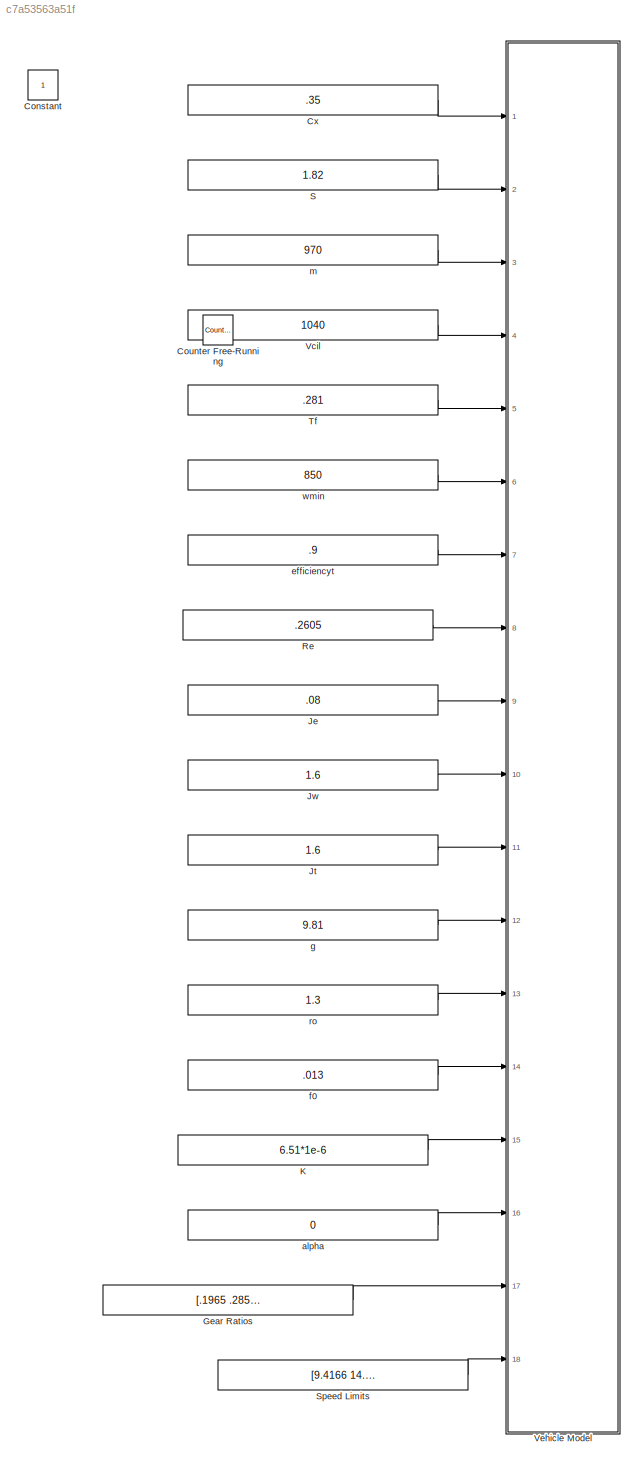
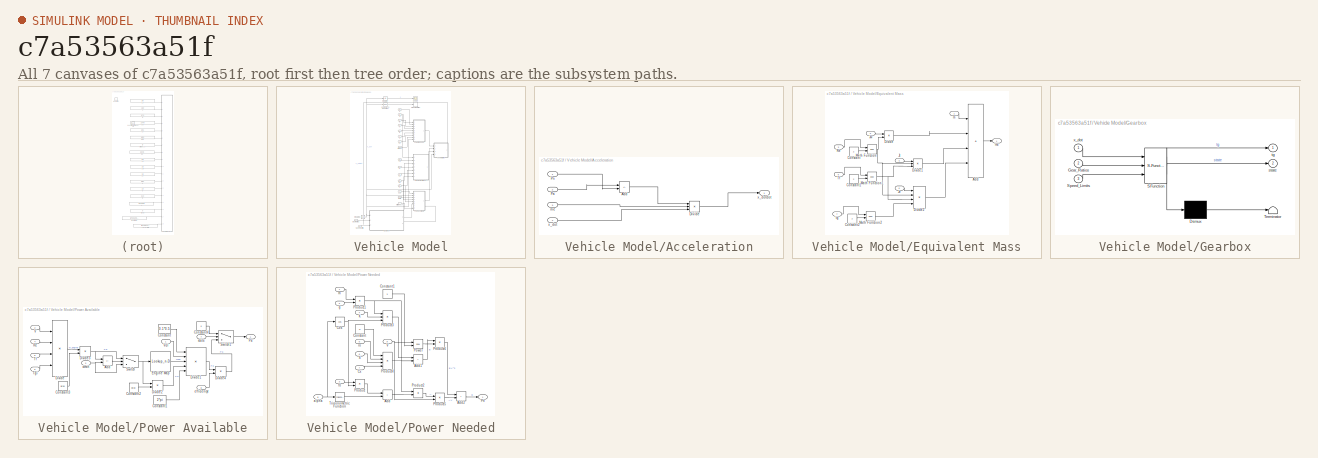
[diagram: thumbnail index - all 7 canvases of the model, root first then tree order]
MODEL slx_c7a53563a51f
KIND model
CONFIG AbsTol = auto
CONFIG EnableMultiTasking = off
CONFIG FixedStep = auto
CONFIG MaxStep = auto
CONFIG MinStep = auto
CONFIG RelTol = 1e-3
CONFIG SampleTimeConstraint = Unconstrained
CONFIG SolverName = VariableStepAuto
CONFIG StartTime = 0.0
CONFIG StopTime = 30
BLOCK [Constant] Constant
  IOType = siggen
BLOCK [Reference] Counter Free-Running  REF=simulink/Sources/Counter
Free-Running
  IOType = siggen
  Ports = [0, 1]
  SourceBlock = simulink/Sources/Counter\nFree-Running
  SourceProductBaseCode = SL
  SourceType = Counter Free-Running
BLOCK [Constant] Cx
  Value = .35
BLOCK [Constant] Gear Ratios
  Value = [.1965 .2857 .4155 .6044 .879]
BLOCK [Constant] Je
  Value = .08
BLOCK [Constant] Jt
  Value = 1.6
BLOCK [Constant] Jw
  Value = 1.6
BLOCK [Constant] K
  Value = 6.51*1e-6
BLOCK [Constant] Re
  Value = .2605
BLOCK [Constant] S
  Value = 1.82
BLOCK [Constant] Speed Limits
  Value = [9.4166 14.2383 20.7077 27.7778 40.4315]
BLOCK [Constant] Tf
  Value = .281
BLOCK [Constant] Vcil
  Value = 1040
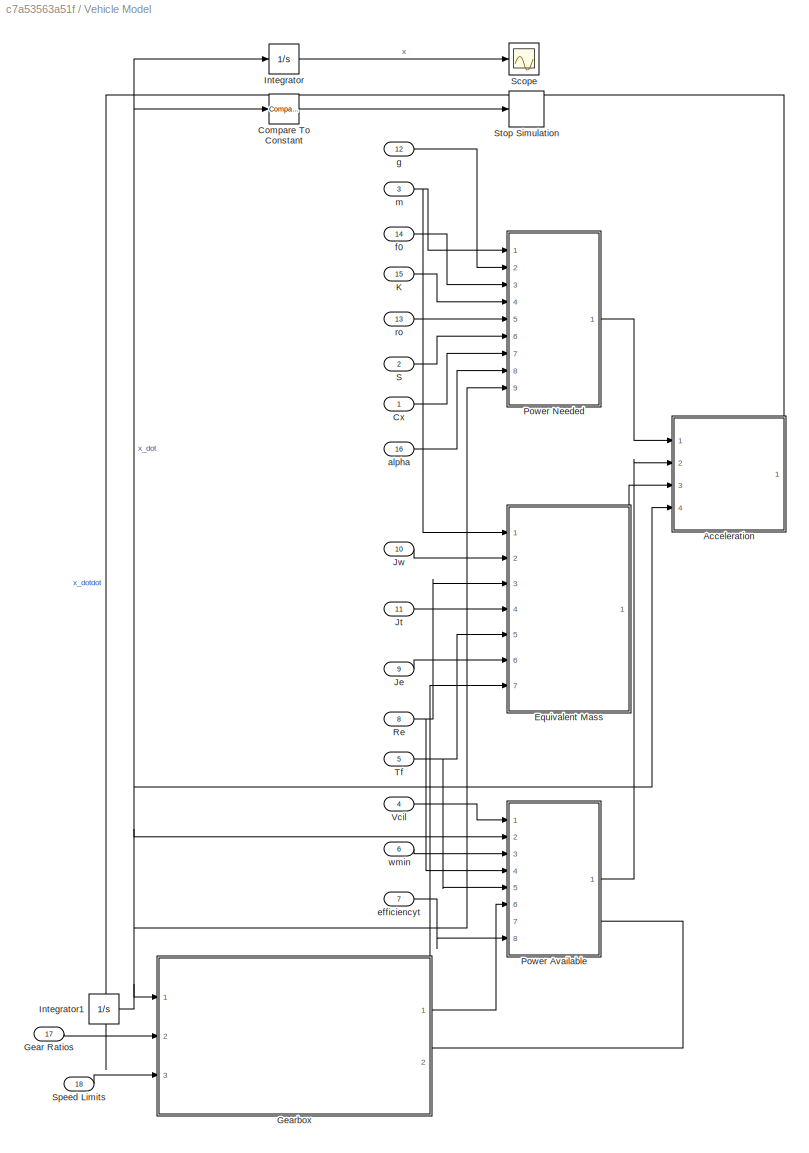
BLOCK [SubSystem] Vehicle Model
  Ports = [18]
  RequestExecContextInheritance = off
BLOCK [SubSystem] Vehicle Model/Acceleration
  PortSchema = {"entries":[{"content":{"sides":[{"content":{"connectorIds":["In1","In2","In3","In4"]},"type":"ConnectorPlacement.EquallySpacedRectSide","uuid":"0dac4d62-4e6e-48b9-89ab-502b66d42413"},{"content":{"connectorIds":[],"side":"RIGHT"},"type":"ConnectorPlacement.EquallySpacedRectSide","uuid":"bb08bafa-9960-47e7-83c1-b5fcb0a564c6"},{"content":{"connectorIds":["Out1"],"side":"TOP"},"type":"ConnectorPlacem...<+258ch>
  Ports = [4, 1]
  RequestExecContextInheritance = off
BLOCK [Sum] Vehicle Model/Acceleration/Add
  IconShape = rectangular
  Inputs = +-
  Ports = [2, 1]
BLOCK [Product] Vehicle Model/Acceleration/Divide
  Inputs = *//
  Ports = [3, 1]
BLOCK [Inport] Vehicle Model/Acceleration/Pa
  Port = 2
BLOCK [Inport] Vehicle Model/Acceleration/Pn
BLOCK [Inport] Vehicle Model/Acceleration/me
  Port = 3
BLOCK [Inport] Vehicle Model/Acceleration/x_dot
  Port = 4
BLOCK [Outport] Vehicle Model/Acceleration/x_dotdot
BLOCK [Reference] Vehicle Model/Compare To Constant  REF=simulink/Logic and Bit
Operations/Compare
To Constant
  Ports = [1, 1]
  SourceBlock = simulink/Logic and Bit\nOperations/Compare\nTo Constant
  SourceProductBaseCode = SL
  SourceType = Compare To Constant
BLOCK [Inport] Vehicle Model/Cx
BLOCK [SubSystem] Vehicle Model/Equivalent Mass
  PortSchema = {"entries":[{"content":{"sides":[{"content":{"connectorIds":["In1","In2","In3","In4","In5","In6","In7"]},"type":"ConnectorPlacement.EquallySpacedRectSide","uuid":"afdafb77-b6a4-4e1f-90ff-c5f4f1bf2fe0"},{"content":{"connectorIds":[],"side":"RIGHT"},"type":"ConnectorPlacement.EquallySpacedRectSide","uuid":"5fc42340-ce7c-45bd-a822-e10069a1a8a1"},{"content":{"connectorIds":["Out1"],"side":"TOP"},"type...<+276ch>
  Ports = [7, 1]
  RequestExecContextInheritance = off
BLOCK [Sum] Vehicle Model/Equivalent Mass/Add
  IconShape = rectangular
  Inputs = ++++
  Ports = [4, 1]
BLOCK [Constant] Vehicle Model/Equivalent Mass/Constant
  Value = 2
BLOCK [Constant] Vehicle Model/Equivalent Mass/Constant1
  Value = 2
BLOCK [Constant] Vehicle Model/Equivalent Mass/Constant2
  Value = 2
BLOCK [Product] Vehicle Model/Equivalent Mass/Divide
  Inputs = */
  Ports = [2, 1]
BLOCK [Product] Vehicle Model/Equivalent Mass/Divide1
  Inputs = *//
  Ports = [3, 1]
BLOCK [Product] Vehicle Model/Equivalent Mass/Divide2
  Inputs = *///
  Ports = [4, 1]
BLOCK [Inport] Vehicle Model/Equivalent Mass/Je
  Port = 6
BLOCK [Inport] Vehicle Model/Equivalent Mass/Jt
  Port = 4
BLOCK [Inport] Vehicle Model/Equivalent Mass/Jw
  Port = 2
BLOCK [Math] Vehicle Model/Equivalent Mass/Math Function
  Operator = pow
  Ports = [2, 1]
BLOCK [Math] Vehicle Model/Equivalent Mass/Math Function1
  Operator = pow
  Ports = [2, 1]
BLOCK [Math] Vehicle Model/Equivalent Mass/Math Function2
  Operator = pow
  Ports = [2, 1]
BLOCK [Inport] Vehicle Model/Equivalent Mass/Re
  Port = 3
BLOCK [Inport] Vehicle Model/Equivalent Mass/Tf
  Port = 5
BLOCK [Inport] Vehicle Model/Equivalent Mass/m
BLOCK [Outport] Vehicle Model/Equivalent Mass/me
BLOCK [Inport] Vehicle Model/Equivalent Mass/tg
  Port = 7
BLOCK [Inport] Vehicle Model/Gear Ratios
  Port = 17
BLOCK [SubSystem] Vehicle Model/Gearbox
  ErrorFcn = Stateflow.Translate.translate
  PermitHierarchicalResolution = ExplicitOnly
  PortSchema = {"entries":[{"content":{"sides":[{"content":{"connectorIds":["In1","In2","In3"]},"type":"ConnectorPlacement.EquallySpacedRectSide","uuid":"7b42100c-494e-4f6b-af0e-d741c5c5ef81"},{"content":{"connectorIds":[],"side":"RIGHT"},"type":"ConnectorPlacement.EquallySpacedRectSide","uuid":"210b2516-13c7-4261-98c6-692dfef7a0f0"},{"content":{"connectorIds":["Out2","Out1"],"side":"TOP"},"type":"ConnectorPlace...<+259ch>
  Ports = [3, 2]
  RequestExecContextInheritance = off
  SFBlockType = Chart
  TreatAsAtomicUnit = on
BLOCK [Demux] Vehicle Model/Gearbox/ Demux 
  Outputs = 1
  Ports = [1, 1]
BLOCK [S-Function] Vehicle Model/Gearbox/ SFunction 
  EnableBusSupport = on
  FunctionName = sf_sfun
  PortCounts = [3 3]
  Ports = [3, 3]
  SFcnIsStateOwnerBlock = off
  SFunctionDeploymentMode = off
  Tag = Stateflow S-Function 3
BLOCK [Terminator] Vehicle Model/Gearbox/ Terminator 
BLOCK [Inport] Vehicle Model/Gearbox/Gear_Ratios
  Port = 2
BLOCK [Inport] Vehicle Model/Gearbox/Speed_Limits
  Port = 3
BLOCK [Outport] Vehicle Model/Gearbox/state
  Port = 2
BLOCK [Outport] Vehicle Model/Gearbox/tg
BLOCK [Inport] Vehicle Model/Gearbox/x_dot
BLOCK [Integrator] Vehicle Model/Integrator
  Ports = [1, 1]
BLOCK [Integrator] Vehicle Model/Integrator1
  InitialCondition = 0.1
  Ports = [1, 1]
BLOCK [Inport] Vehicle Model/Je
  Port = 9
BLOCK [Inport] Vehicle Model/Jt
  Port = 11
BLOCK [Inport] Vehicle Model/Jw
  Port = 10
BLOCK [Inport] Vehicle Model/K
  Port = 15
BLOCK [SubSystem] Vehicle Model/Power Available
  Ports = [8, 1]
  RequestExecContextInheritance = off
BLOCK [Sum] Vehicle Model/Power Available/Add
  IconShape = rectangular
  Inputs = +-
  Ports = [2, 1]
BLOCK [Constant] Vehicle Model/Power Available/Constant
  Value = 0.1*0.5
BLOCK [Constant] Vehicle Model/Power Available/Constant1
  Value = 2*pi
BLOCK [Constant] Vehicle Model/Power Available/Constant2
  Value = pi/30
BLOCK [Constant] Vehicle Model/Power Available/Constant3
  Value = pi/30
BLOCK [Constant] Vehicle Model/Power Available/Constant4
  Value = 0
BLOCK [Product] Vehicle Model/Power Available/Divide
  Inputs = *///
  Ports = [4, 1]
BLOCK [Product] Vehicle Model/Power Available/Divide1
  Inputs = ****/
  Ports = [5, 1]
BLOCK [Product] Vehicle Model/Power Available/Divide2
  Inputs = **
  Ports = [2, 1]
BLOCK [Product] Vehicle Model/Power Available/Divide3
  Inputs = */
  Ports = [2, 1]
BLOCK [Product] Vehicle Model/Power Available/Divide4
  Inputs = **
  Ports = [2, 1]
BLOCK [Lookup_n-D] Vehicle Model/Power Available/Engine Map
  BreakpointsForDimension1 = [1000;1500;2000;2500;3000;3250;3500;4000;4500;5000;5500;6000;6500]
  InputPortMap = u0
  InternalRulePriority = Speed
  NumberOfTableDimensions = 1
  Ports = [1, 1]
  RndMeth = Simplest
  Table = [5.99;8.58;8.84;9.33;9.51;9.67;9.61;9.63;9.48;8.93;8.25;7.79;7.12]
BLOCK [Outport] Vehicle Model/Power Available/Pa
BLOCK [Inport] Vehicle Model/Power Available/Re
  Port = 4
BLOCK [Switch] Vehicle Model/Power Available/Switch
  Criteria = u2 > Threshold
  InputSameDT = off
  SaturateOnIntegerOverflow = off
BLOCK [Switch] Vehicle Model/Power Available/Switch1
  Criteria = u2 > Threshold
  InputSameDT = off
  SaturateOnIntegerOverflow = off
BLOCK [Inport] Vehicle Model/Power Available/Tf
  Port = 5
BLOCK [Inport] Vehicle Model/Power Available/Tgi
  Port = 6
BLOCK [Inport] Vehicle Model/Power Available/V
  Port = 2
BLOCK [Inport] Vehicle Model/Power Available/Vcil
BLOCK [Inport] Vehicle Model/Power Available/efficiencyt
  Port = 8
BLOCK [Inport] Vehicle Model/Power Available/state
  Port = 7
BLOCK [Inport] Vehicle Model/Power Available/wmin
  Port = 3
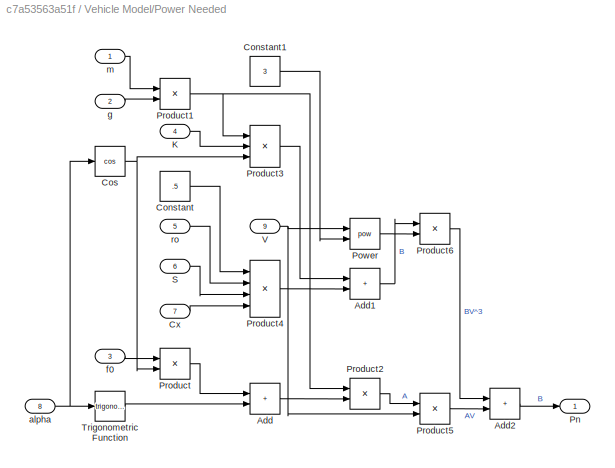
BLOCK [SubSystem] Vehicle Model/Power Needed
  Ports = [9, 1]
  RequestExecContextInheritance = off
BLOCK [Sum] Vehicle Model/Power Needed/Add
  IconShape = rectangular
  Ports = [2, 1]
BLOCK [Sum] Vehicle Model/Power Needed/Add1
  IconShape = rectangular
  Ports = [2, 1]
BLOCK [Sum] Vehicle Model/Power Needed/Add2
  IconShape = rectangular
  Ports = [2, 1]
BLOCK [Constant] Vehicle Model/Power Needed/Constant
  Value = .5
BLOCK [Constant] Vehicle Model/Power Needed/Constant1
  Value = 3
BLOCK [Trigonometry] Vehicle Model/Power Needed/Cos
  Operator = cos
  Ports = [1, 1]
BLOCK [Inport] Vehicle Model/Power Needed/Cx
  Port = 7
BLOCK [Inport] Vehicle Model/Power Needed/K
  Port = 4
BLOCK [Outport] Vehicle Model/Power Needed/Pn
BLOCK [Math] Vehicle Model/Power Needed/Power
  Operator = pow
  Ports = [2, 1]
BLOCK [Product] Vehicle Model/Power Needed/Product
  Ports = [2, 1]
BLOCK [Product] Vehicle Model/Power Needed/Product1
  Ports = [2, 1]
BLOCK [Product] Vehicle Model/Power Needed/Product2
  Ports = [2, 1]
BLOCK [Product] Vehicle Model/Power Needed/Product3
  Inputs = 3
  Ports = [3, 1]
BLOCK [Product] Vehicle Model/Power Needed/Product4
  Inputs = 4
  Ports = [4, 1]
BLOCK [Product] Vehicle Model/Power Needed/Product5
  Ports = [2, 1]
BLOCK [Product] Vehicle Model/Power Needed/Product6
  Ports = [2, 1]
BLOCK [Inport] Vehicle Model/Power Needed/S
  Port = 6
BLOCK [Trigonometry] Vehicle Model/Power Needed/Trigonometric Function
  Ports = [1, 1]
BLOCK [Inport] Vehicle Model/Power Needed/V
  Port = 9
BLOCK [Inport] Vehicle Model/Power Needed/alpha
  Port = 8
BLOCK [Inport] Vehicle Model/Power Needed/f0
  Port = 3
BLOCK [Inport] Vehicle Model/Power Needed/g
  Port = 2
BLOCK [Inport] Vehicle Model/Power Needed/m
BLOCK [Inport] Vehicle Model/Power Needed/ro
  Port = 5
BLOCK [Inport] Vehicle Model/Re
  Port = 8
BLOCK [Inport] Vehicle Model/S
  Port = 2
BLOCK [Scope] Vehicle Model/Scope
  Floating = off
  NumInputPorts = 1
  Ports = [1]
  ScopeSpecificationString = Simulink.scopes.TimeScopeBlockCfg('CurrentConfiguration', extmgr.ConfigurationSet(extmgr.Configuration('Core','General UI',true),extmgr.Configuration('Core','Source UI',true),extmgr.Configuration('Sources','WiredSimulink',true),extmgr.Configuration('Visuals','Time Domain',true,'SerializedDisplays',{struct('MinYLimReal','-53.06662','MaxYLimReal','477.59962','YLabelReal','','MinYLimMag','0.00000','M...<+1331ch>
BLOCK [Inport] Vehicle Model/Speed Limits
  Port = 18
BLOCK [Stop] Vehicle Model/Stop Simulation
BLOCK [Inport] Vehicle Model/Tf
  Port = 5
BLOCK [Inport] Vehicle Model/Vcil
  Port = 4
BLOCK [Inport] Vehicle Model/alpha
  Port = 16
BLOCK [Inport] Vehicle Model/efficiencyt
  Port = 7
BLOCK [Inport] Vehicle Model/f0
  Port = 14
BLOCK [Inport] Vehicle Model/g
  Port = 12
BLOCK [Inport] Vehicle Model/m
  Port = 3
BLOCK [Inport] Vehicle Model/ro
  Port = 13
BLOCK [Inport] Vehicle Model/wmin
  Port = 6
BLOCK [Constant] alpha
  Value = 0
BLOCK [Constant] efficiencyt
  Value = .9
BLOCK [Constant] f0
  Value = .013
BLOCK [Constant] g
  Value = 9.81
BLOCK [Constant] m
  Value = 970
BLOCK [Constant] ro
  Value = 1.3
BLOCK [Constant] wmin
  Value = 850
LINE Cx:1 -> Vehicle Model:1
LINE Gear Ratios:1 -> Vehicle Model:17
LINE Je:1 -> Vehicle Model:9
LINE Jt:1 -> Vehicle Model:11
LINE Jw:1 -> Vehicle Model:10
LINE K:1 -> Vehicle Model:15
LINE Re:1 -> Vehicle Model:8
LINE S:1 -> Vehicle Model:2
LINE Speed Limits:1 -> Vehicle Model:18
LINE Tf:1 -> Vehicle Model:5
LINE Vcil:1 -> Vehicle Model:4
LINE Vehicle Model/Acceleration/Add:1 -> Vehicle Model/Acceleration/Divide:1
LINE Vehicle Model/Acceleration/Divide:1 -> Vehicle Model/Acceleration/x_dotdot:1
LINE Vehicle Model/Acceleration/Pa:1 -> Vehicle Model/Acceleration/Add:1
LINE Vehicle Model/Acceleration/Pn:1 -> Vehicle Model/Acceleration/Add:2
LINE Vehicle Model/Acceleration/me:1 -> Vehicle Model/Acceleration/Divide:2
LINE Vehicle Model/Acceleration/x_dot:1 -> Vehicle Model/Acceleration/Divide:3
LINE Vehicle Model/Acceleration:1 -> Vehicle Model/Integrator1:1
LINE Vehicle Model/Compare To Constant:1 -> Vehicle Model/Stop Simulation:1
LINE Vehicle Model/Cx:1 -> Vehicle Model/Power Needed:7
LINE Vehicle Model/Equivalent Mass/Add:1 -> Vehicle Model/Equivalent Mass/me:1
LINE Vehicle Model/Equivalent Mass/Constant1:1 -> Vehicle Model/Equivalent Mass/Math Function1:2
LINE Vehicle Model/Equivalent Mass/Constant2:1 -> Vehicle Model/Equivalent Mass/Math Function2:2
LINE Vehicle Model/Equivalent Mass/Constant:1 -> Vehicle Model/Equivalent Mass/Math Function:2
LINE Vehicle Model/Equivalent Mass/Divide1:1 -> Vehicle Model/Equivalent Mass/Add:3
LINE Vehicle Model/Equivalent Mass/Divide2:1 -> Vehicle Model/Equivalent Mass/Add:4
LINE Vehicle Model/Equivalent Mass/Divide:1 -> Vehicle Model/Equivalent Mass/Add:2
LINE Vehicle Model/Equivalent Mass/Je:1 -> Vehicle Model/Equivalent Mass/Divide2:1
LINE Vehicle Model/Equivalent Mass/Jt:1 -> Vehicle Model/Equivalent Mass/Divide1:1
LINE Vehicle Model/Equivalent Mass/Jw:1 -> Vehicle Model/Equivalent Mass/Divide:1
NET Vehicle Model/Equivalent Mass/Math Function1:1 -> Vehicle Model/Equivalent Mass/Divide1:3, Vehicle Model/Equivalent Mass/Divide2:3
LINE Vehicle Model/Equivalent Mass/Math Function2:1 -> Vehicle Model/Equivalent Mass/Divide2:4
NET Vehicle Model/Equivalent Mass/Math Function:1 -> Vehicle Model/Equivalent Mass/Divide1:2, Vehicle Model/Equivalent Mass/Divide2:2, Vehicle Model/Equivalent Mass/Divide:2
LINE Vehicle Model/Equivalent Mass/Re:1 -> Vehicle Model/Equivalent Mass/Math Function:1
LINE Vehicle Model/Equivalent Mass/Tf:1 -> Vehicle Model/Equivalent Mass/Math Function1:1
LINE Vehicle Model/Equivalent Mass/m:1 -> Vehicle Model/Equivalent Mass/Add:1
LINE Vehicle Model/Equivalent Mass/tg:1 -> Vehicle Model/Equivalent Mass/Math Function2:1
LINE Vehicle Model/Equivalent Mass:1 -> Vehicle Model/Acceleration:3
LINE Vehicle Model/Gear Ratios:1 -> Vehicle Model/Gearbox:2
NET Vehicle Model/Gearbox:1 -> Vehicle Model/Equivalent Mass:7, Vehicle Model/Power Available:6
LINE Vehicle Model/Gearbox:2 -> Vehicle Model/Power Available:7
NET Vehicle Model/Integrator1:1 -> Vehicle Model/Acceleration:4, Vehicle Model/Compare To Constant:1, Vehicle Model/Gearbox:1, Vehicle Model/Integrator:1, Vehicle Model/Power Available:2, Vehicle Model/Power Needed:9
LINE Vehicle Model/Integrator:1 -> Vehicle Model/Scope:1
LINE Vehicle Model/Je:1 -> Vehicle Model/Equivalent Mass:6
LINE Vehicle Model/Jt:1 -> Vehicle Model/Equivalent Mass:4
LINE Vehicle Model/Jw:1 -> Vehicle Model/Equivalent Mass:2
LINE Vehicle Model/K:1 -> Vehicle Model/Power Needed:4
LINE Vehicle Model/Power Available/Add:1 -> Vehicle Model/Power Available/Switch:2
LINE Vehicle Model/Power Available/Constant1:1 -> Vehicle Model/Power Available/Divide1:5
LINE Vehicle Model/Power Available/Constant2:1 -> Vehicle Model/Power Available/Divide2:2
LINE Vehicle Model/Power Available/Constant3:1 -> Vehicle Model/Power Available/Divide3:2
LINE Vehicle Model/Power Available/Constant4:1 -> Vehicle Model/Power Available/Switch1:1
LINE Vehicle Model/Power Available/Constant:1 -> Vehicle Model/Power Available/Divide1:1
LINE Vehicle Model/Power Available/Divide1:1 -> Vehicle Model/Power Available/Divide4:1
LINE Vehicle Model/Power Available/Divide2:1 -> Vehicle Model/Power Available/Divide1:4
NET Vehicle Model/Power Available/Divide3:1 -> Vehicle Model/Power Available/Add:1, Vehicle Model/Power Available/Switch:1
LINE Vehicle Model/Power Available/Divide4:1 -> Vehicle Model/Power Available/Switch1:3
LINE Vehicle Model/Power Available/Divide:1 -> Vehicle Model/Power Available/Divide3:1
LINE Vehicle Model/Power Available/Engine Map:1 -> Vehicle Model/Power Available/Divide1:3
LINE Vehicle Model/Power Available/Re:1 -> Vehicle Model/Power Available/Divide:2
LINE Vehicle Model/Power Available/Switch1:1 -> Vehicle Model/Power Available/Pa:1
NET Vehicle Model/Power Available/Switch:1 -> Vehicle Model/Power Available/Divide2:1, Vehicle Model/Power Available/Engine Map:1
LINE Vehicle Model/Power Available/Tf:1 -> Vehicle Model/Power Available/Divide:3
LINE Vehicle Model/Power Available/Tgi:1 -> Vehicle Model/Power Available/Divide:4
LINE Vehicle Model/Power Available/V:1 -> Vehicle Model/Power Available/Divide:1
LINE Vehicle Model/Power Available/Vcil:1 -> Vehicle Model/Power Available/Divide1:2
LINE Vehicle Model/Power Available/efficiencyt:1 -> Vehicle Model/Power Available/Divide4:2
LINE Vehicle Model/Power Available/state:1 -> Vehicle Model/Power Available/Switch1:2
NET Vehicle Model/Power Available/wmin:1 -> Vehicle Model/Power Available/Add:2, Vehicle Model/Power Available/Switch:3
LINE Vehicle Model/Power Available:1 -> Vehicle Model/Acceleration:2
LINE Vehicle Model/Power Needed/Add1:1 -> Vehicle Model/Power Needed/Product6:1
LINE Vehicle Model/Power Needed/Add2:1 -> Vehicle Model/Power Needed/Pn:1
LINE Vehicle Model/Power Needed/Add:1 -> Vehicle Model/Power Needed/Product2:2
LINE Vehicle Model/Power Needed/Constant1:1 -> Vehicle Model/Power Needed/Power:2
LINE Vehicle Model/Power Needed/Constant:1 -> Vehicle Model/Power Needed/Product4:1
NET Vehicle Model/Power Needed/Cos:1 -> Vehicle Model/Power Needed/Product3:3, Vehicle Model/Power Needed/Product:2
LINE Vehicle Model/Power Needed/Cx:1 -> Vehicle Model/Power Needed/Product4:4
LINE Vehicle Model/Power Needed/K:1 -> Vehicle Model/Power Needed/Product3:2
LINE Vehicle Model/Power Needed/Power:1 -> Vehicle Model/Power Needed/Product6:2
NET Vehicle Model/Power Needed/Product1:1 -> Vehicle Model/Power Needed/Product2:1, Vehicle Model/Power Needed/Product3:1
LINE Vehicle Model/Power Needed/Product2:1 -> Vehicle Model/Power Needed/Product5:1
LINE Vehicle Model/Power Needed/Product3:1 -> Vehicle Model/Power Needed/Add1:1
LINE Vehicle Model/Power Needed/Product4:1 -> Vehicle Model/Power Needed/Add1:2
LINE Vehicle Model/Power Needed/Product5:1 -> Vehicle Model/Power Needed/Add2:2
LINE Vehicle Model/Power Needed/Product6:1 -> Vehicle Model/Power Needed/Add2:1
LINE Vehicle Model/Power Needed/Product:1 -> Vehicle Model/Power Needed/Add:1
LINE Vehicle Model/Power Needed/S:1 -> Vehicle Model/Power Needed/Product4:3
LINE Vehicle Model/Power Needed/Trigonometric Function:1 -> Vehicle Model/Power Needed/Add:2
NET Vehicle Model/Power Needed/V:1 -> Vehicle Model/Power Needed/Power:1, Vehicle Model/Power Needed/Product5:2
NET Vehicle Model/Power Needed/alpha:1 -> Vehicle Model/Power Needed/Cos:1, Vehicle Model/Power Needed/Trigonometric Function:1
LINE Vehicle Model/Power Needed/f0:1 -> Vehicle Model/Power Needed/Product:1
LINE Vehicle Model/Power Needed/g:1 -> Vehicle Model/Power Needed/Product1:2
LINE Vehicle Model/Power Needed/m:1 -> Vehicle Model/Power Needed/Product1:1
LINE Vehicle Model/Power Needed/ro:1 -> Vehicle Model/Power Needed/Product4:2
LINE Vehicle Model/Power Needed:1 -> Vehicle Model/Acceleration:1
NET Vehicle Model/Re:1 -> Vehicle Model/Equivalent Mass:3, Vehicle Model/Power Available:4
LINE Vehicle Model/S:1 -> Vehicle Model/Power Needed:6
LINE Vehicle Model/Speed Limits:1 -> Vehicle Model/Gearbox:3
NET Vehicle Model/Tf:1 -> Vehicle Model/Equivalent Mass:5, Vehicle Model/Power Available:5
LINE Vehicle Model/Vcil:1 -> Vehicle Model/Power Available:1
LINE Vehicle Model/alpha:1 -> Vehicle Model/Power Needed:8
LINE Vehicle Model/efficiencyt:1 -> Vehicle Model/Power Available:8
LINE Vehicle Model/f0:1 -> Vehicle Model/Power Needed:3
LINE Vehicle Model/g:1 -> Vehicle Model/Power Needed:2
NET Vehicle Model/m:1 -> Vehicle Model/Equivalent Mass:1, Vehicle Model/Power Needed:1
LINE Vehicle Model/ro:1 -> Vehicle Model/Power Needed:5
LINE Vehicle Model/wmin:1 -> Vehicle Model/Power Available:3
LINE alpha:1 -> Vehicle Model:16
LINE efficiencyt:1 -> Vehicle Model:7
LINE f0:1 -> Vehicle Model:14
LINE g:1 -> Vehicle Model:12
LINE m:1 -> Vehicle Model:3
LINE ro:1 -> Vehicle Model:13
LINE wmin:1 -> Vehicle Model:6
note: NET lines group one-source signal fan-out (src -> all destinations, sorted); 1:1 wires keep LINE
CHART Vehicle Model/Gearbox states=6 transitions=7
  STATE_LABEL 'gear_state\nentry:\ni = 1;'
  STATE_LABEL 'engage\ntg = Gear_Ratios(i);\nup_th = Speed_Limits(i);\nif(i == 1)\n    down_th = 0;\nelse\n    down_th = Speed_Limits(i-1);\nend'
  STATE_LABEL 'UP{i = i + 1;}'
  STATE_LABEL 'DOWN{i = i - 1;}'
  STATE_LABEL 'engage\ntg = Gear_Ratios(i);\nup_th = Speed_Limits(i);\nif(i == 1)\n    down_th = 0;\nelse\n    down_th = Speed_Limits(i-1);\nend'
  STATE_LABEL 'selection_state'
  STATE_LABEL 'steady\nentry:\nstate = 0;'
  STATE_LABEL 'downshifting\nentry:\nstate = 1;'
  STATE_LABEL 'upshifting\nentry:\nstate = 1;\n'
  STATE_LABEL '[x_dot < down_th]'
  STATE_LABEL '[x_dot > up_th]'
  STATE_LABEL 'after(1, sec){send(DOWN, gear_state)}'
  STATE_LABEL 'after(1, sec){send(UP, gear_state)}'
  STATE_LABEL 'steady\nentry:\nstate = 0;'
  STATE_LABEL 'downshifting\nentry:\nstate = 1;'
  STATE_LABEL 'upshifting\nentry:\nstate = 1;\n'
CHART  states=0 transitions=0
